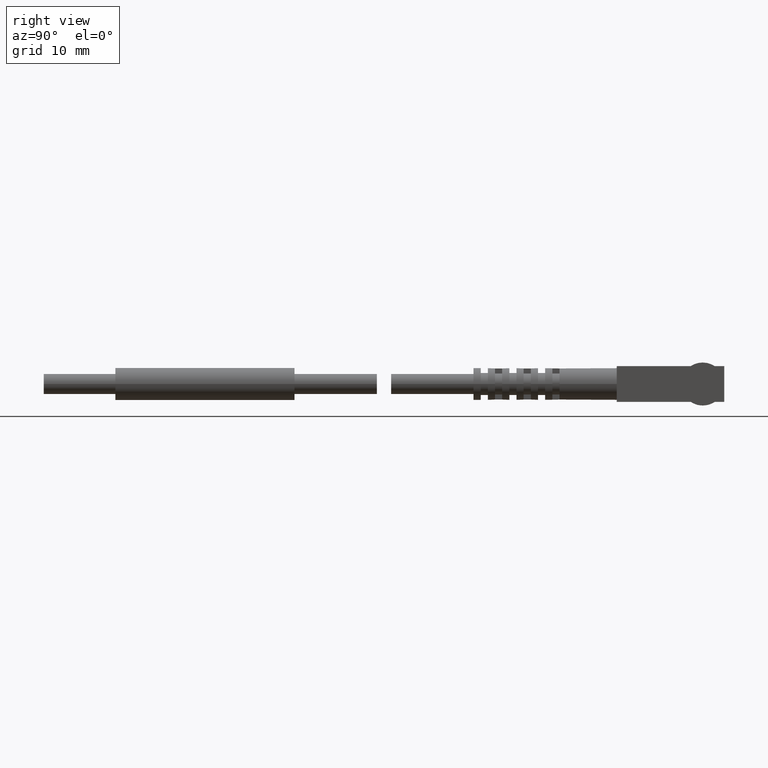
[diagram: clean part render]
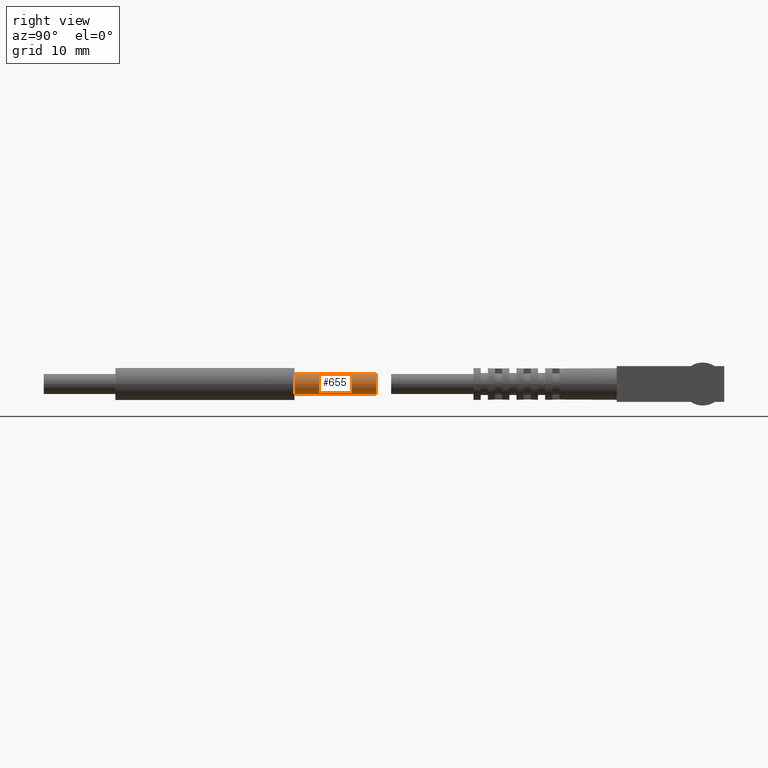
[diagram: same view with one face highlighted and labeled with its STEP entity id]
A machine part, right view. The second image highlights one B-rep face of the part: STEP entity #655.
In plain terms, the highlighted cylindrical surface (bore or boss wall) has radius 1.4 mm, axis along (-0, -1, 0).
Its self-contained STEP definition (entity closure, byte-faithful):
#28 = ORIENTED_EDGE ( 'NONE', *, *, #112, .F. ) ;
#38 = FACE_OUTER_BOUND ( 'NONE', #844, .T. ) ;
#59 = CARTESIAN_POINT ( 'NONE',  ( 1.358267716535433323, -1.791338582677165281, 0.0000000000000000000 ) ) ;
#112 = EDGE_CURVE ( 'NONE', #866, #866, #1776, .T. ) ;
#193 = DIRECTION ( 'NONE',  ( 0.0000000000000000000, 0.0000000000000000000, -1.000000000000000000 ) ) ;
#285 = VERTEX_POINT ( 'NONE', #1416 ) ;
#367 = DIRECTION ( 'NONE',  ( 1.000000000000000000, 0.0000000000000000000, 0.0000000000000000000 ) ) ;
#549 = EDGE_CURVE ( 'NONE', #285, #285, #1549, .T. ) ;
#655 = ADVANCED_FACE ( 'NONE', ( #1505, #38 ), #1030, .T. ) ;
#759 = CARTESIAN_POINT ( 'NONE',  ( 1.358267716535433323, -2.244094448818897636, 0.0000000000000000000 ) ) ;
#781 = EDGE_LOOP ( 'NONE', ( #28 ) ) ;
#810 = DIRECTION ( 'NONE',  ( -3.469446909221080090E-16, -1.000000000000000000, 0.0000000000000000000 ) ) ;
#844 = EDGE_LOOP ( 'NONE', ( #1790 ) ) ;
#866 = VERTEX_POINT ( 'NONE', #1007 ) ;
#923 = AXIS2_PLACEMENT_3D ( 'NONE', #59, #1826, #193 ) ;
#1007 = CARTESIAN_POINT ( 'NONE',  ( 1.358267716535433323, -1.791338582677165281, -0.05511811023622047168 ) ) ;
#1030 = CYLINDRICAL_SURFACE ( 'NONE', #1493, 0.05511811023622041616 ) ;
#1379 = CARTESIAN_POINT ( 'NONE',  ( 1.358267716535433323, -3.622047282887606467, 0.0000000000000000000 ) ) ;
#1416 = CARTESIAN_POINT ( 'NONE',  ( 1.413385826771653697, -2.244094448818897636, 0.0000000000000000000 ) ) ;
#1493 = AXIS2_PLACEMENT_3D ( 'NONE', #1379, #810, #367 ) ;
#1505 = FACE_OUTER_BOUND ( 'NONE', #781, .T. ) ;
#1549 = CIRCLE ( 'NONE', #1617, 0.05511811023622041616 ) ;
#1617 = AXIS2_PLACEMENT_3D ( 'NONE', #759, #1773, #1788 ) ;
#1773 = DIRECTION ( 'NONE',  ( -3.469446909221080090E-16, -1.000000000000000000, 0.0000000000000000000 ) ) ;
#1776 = CIRCLE ( 'NONE', #923, 0.05511811023622047168 ) ;
#1788 = DIRECTION ( 'NONE',  ( 1.000000000000000000, 0.0000000000000000000, 0.0000000000000000000 ) ) ;
#1790 = ORIENTED_EDGE ( 'NONE', *, *, #549, .F. ) ;
#1826 = DIRECTION ( 'NONE',  ( -0.0000000000000000000, 1.000000000000000000, -0.0000000000000000000 ) ) ;